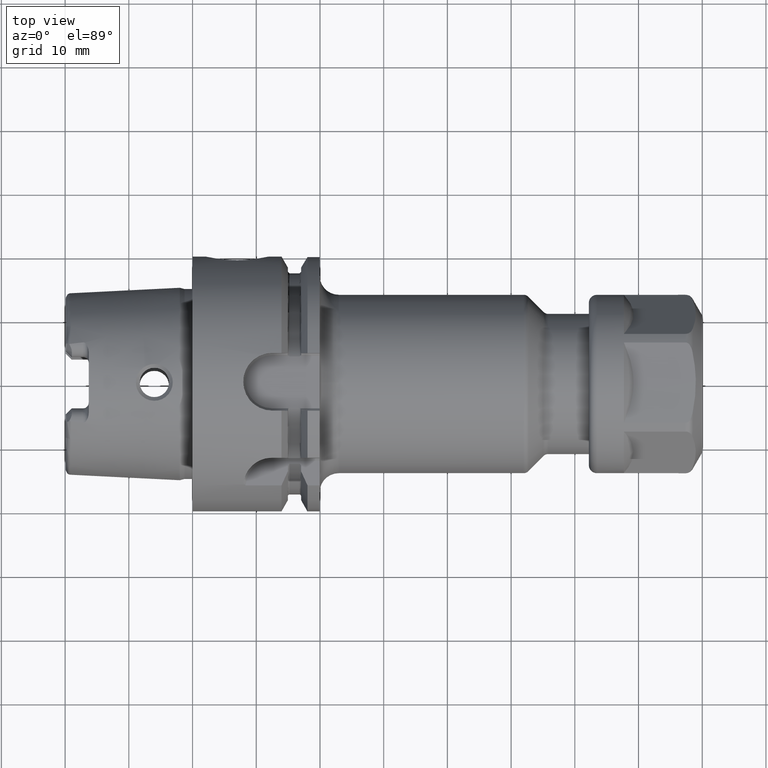
[diagram: clean part render]
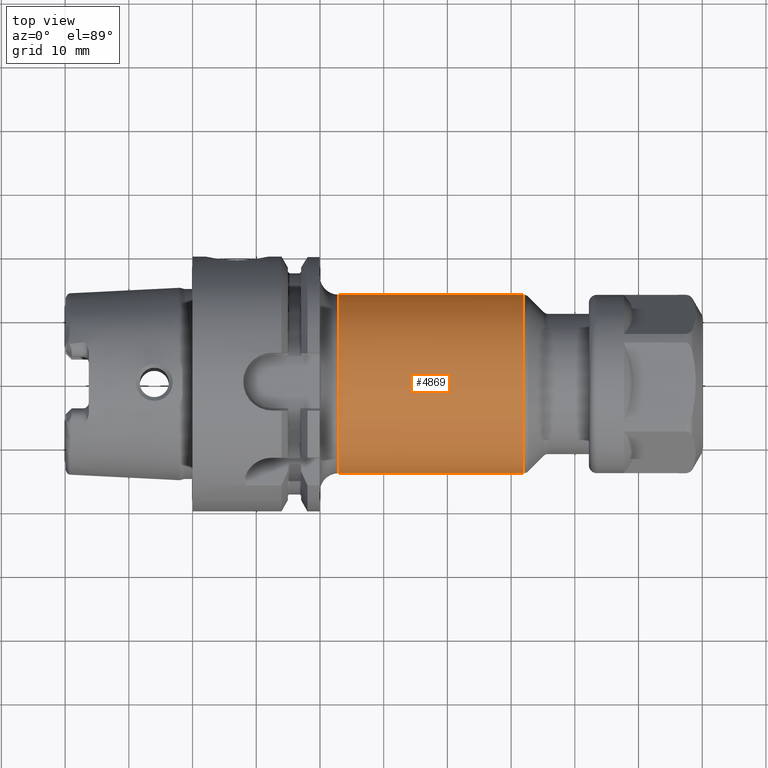
[diagram: same view with one face highlighted and labeled with its STEP entity id]
A machine part, top view. The second image highlights one B-rep face of the part: STEP entity #4869.
In plain terms, the highlighted cylindrical surface (partial cylindrical patch) has radius 14 mm, axis along (1, 0, 0).
Its self-contained STEP definition (entity closure, byte-faithful):
#1504=CARTESIAN_POINT('',(5.198578643763E1,0.E0,0.E0));
#1505=DIRECTION('',(-1.E0,0.E0,0.E0));
#1506=DIRECTION('',(0.E0,-1.E0,0.E0));
#1507=AXIS2_PLACEMENT_3D('',#1504,#1505,#1506);
#1509=CARTESIAN_POINT('',(2.295E1,0.E0,0.E0));
#1510=DIRECTION('',(1.E0,0.E0,0.E0));
#1511=DIRECTION('',(0.E0,-1.329090269276E-5,9.999999999117E-1));
#1512=AXIS2_PLACEMENT_3D('',#1509,#1510,#1511);
#1514=CARTESIAN_POINT('',(2.295E1,0.E0,0.E0));
#1515=DIRECTION('',(1.E0,0.E0,0.E0));
#1516=DIRECTION('',(0.E0,1.E0,0.E0));
#1517=AXIS2_PLACEMENT_3D('',#1514,#1515,#1516);
#1534=DIRECTION('',(-1.E0,0.E0,2.120179971789E-13));
#1535=VECTOR('',#1534,2.903578643763E1);
#1536=CARTESIAN_POINT('',(5.198578643763E1,1.4E1,-4.704566298040E-12));
#1537=LINE('',#1536,#1535);
#1538=DIRECTION('',(-1.E0,0.E0,-2.369242636597E-13));
#1539=VECTOR('',#1538,2.903578643763E1);
#1540=CARTESIAN_POINT('',(5.198578643763E1,-1.4E1,4.704134657350E-12));
#1541=LINE('',#1540,#1539);
#3260=CARTESIAN_POINT('',(2.295E1,-1.243187896067E-4,1.399999999945E1));
#3262=VERTEX_POINT('',#3260);
#3263=CARTESIAN_POINT('',(2.295E1,1.4E1,0.E0));
#3264=VERTEX_POINT('',#3263);
#3275=CARTESIAN_POINT('',(2.295E1,-1.4E1,0.E0));
#3276=VERTEX_POINT('',#3275);
#3288=CARTESIAN_POINT('',(5.198578643763E1,1.4E1,0.E0));
#3289=CARTESIAN_POINT('',(5.198578643763E1,-1.4E1,0.E0));
#3290=VERTEX_POINT('',#3288);
#3291=VERTEX_POINT('',#3289);
#4854=CARTESIAN_POINT('',(1.74775E1,0.E0,0.E0));
#4855=DIRECTION('',(1.E0,0.E0,0.E0));
#4856=DIRECTION('',(0.E0,-1.E0,0.E0));
#4857=AXIS2_PLACEMENT_3D('',#4854,#4855,#4856);
#4858=CYLINDRICAL_SURFACE('',#4857,1.4E1);
#4860=ORIENTED_EDGE('',*,*,#4859,.F.);
#4862=ORIENTED_EDGE('',*,*,#4861,.T.);
#4863=ORIENTED_EDGE('',*,*,#4846,.F.);
#4864=ORIENTED_EDGE('',*,*,#4749,.F.);
#4866=ORIENTED_EDGE('',*,*,#4865,.F.);
#4867=EDGE_LOOP('',(#4860,#4862,#4863,#4864,#4866));
#4868=FACE_OUTER_BOUND('',#4867,.F.);
#4869=ADVANCED_FACE('',(#4868),#4858,.T.);
#1508=CIRCLE('',#1507,1.4E1);
#1513=CIRCLE('',#1512,1.4E1);
#1518=CIRCLE('',#1517,1.4E1);
#4749=EDGE_CURVE('',#3264,#3262,#1518,.T.);
#4846=EDGE_CURVE('',#3262,#3276,#1513,.T.);
#4859=EDGE_CURVE('',#3291,#3290,#1508,.T.);
#4861=EDGE_CURVE('',#3291,#3276,#1541,.T.);
#4865=EDGE_CURVE('',#3290,#3264,#1537,.T.);